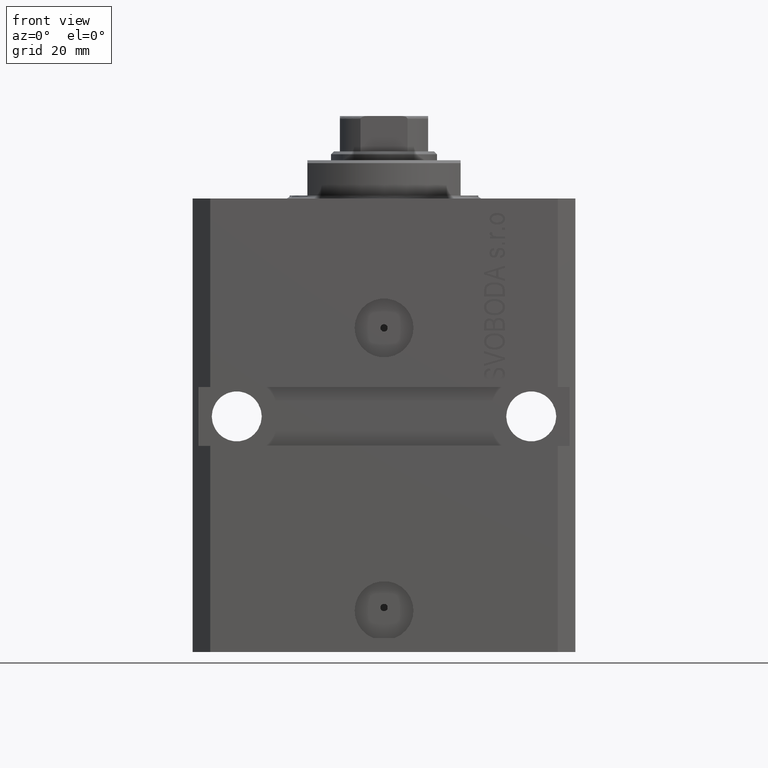
[diagram: clean part render]
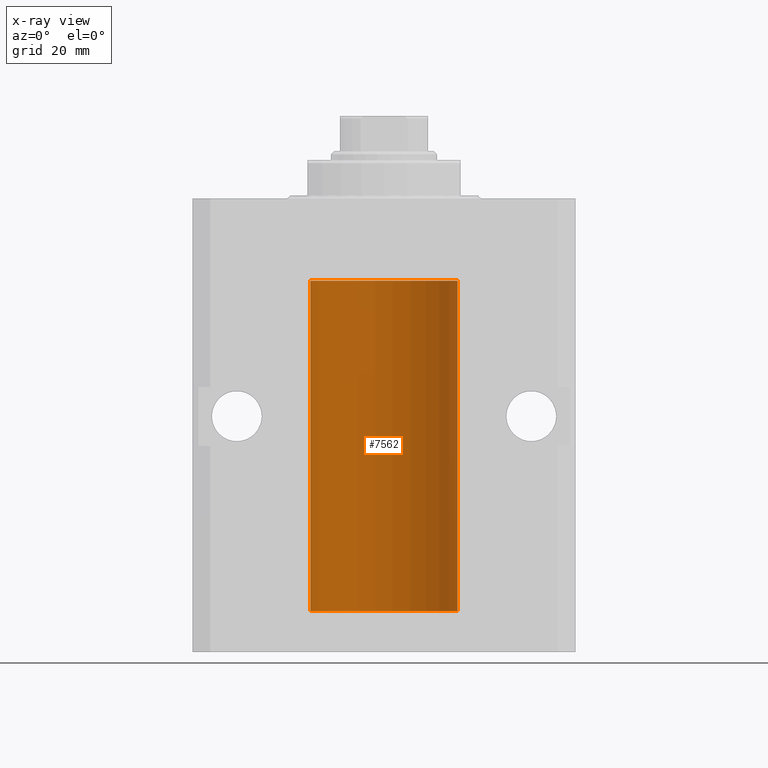
[diagram: x-ray — body ghosted, one internal face saturated and labeled with its STEP entity id]
A machine part, front view, then the same camera in x-ray: the body is ghosted and one INTERNAL B-rep face — a face not visible from any outside direction — is saturated and labeled: STEP entity #7562.
In plain terms, the highlighted cylindrical surface (partial cylindrical patch) has radius 12.5 mm, axis along (0, 0, 1).
Its self-contained STEP definition (entity closure, byte-faithful):
#129 = EDGE_CURVE ( 'NONE', #7291, #30047, #8101, .T. ) ;
#393 = VERTEX_POINT ( 'NONE', #12333 ) ;
#578 = ORIENTED_EDGE ( 'NONE', *, *, #26243, .F. ) ;
#1809 = CARTESIAN_POINT ( 'NONE',  ( -12.50000000000000000, 1.530808498934191521E-15, -13.99999999999999822 ) ) ;
#3258 = CARTESIAN_POINT ( 'NONE',  ( -12.50000000000000000, 1.530808498934191521E-15, -70.09999999999999432 ) ) ;
#3411 = VERTEX_POINT ( 'NONE', #17858 ) ;
#4256 = ORIENTED_EDGE ( 'NONE', *, *, #9325, .T. ) ;
#4533 = CARTESIAN_POINT ( 'NONE',  ( -12.49631005746706514, 0.3253680783018499389, -65.55856740465391397 ) ) ;
#4573 = CARTESIAN_POINT ( 'NONE',  ( -12.50000000000017941, 3.883381774819353300E-13, -65.62500000000359535 ) ) ;
#5159 = CARTESIAN_POINT ( 'NONE',  ( -12.49625855304193678, 0.3150454781038042329, -21.45402800297484802 ) ) ;
#5969 = EDGE_CURVE ( 'NONE', #14838, #3411, #12307, .T. ) ;
#6950 = CARTESIAN_POINT ( 'NONE',  ( -12.50000000000000000, -1.053276923642966949E-14, -64.37500000000000000 ) ) ;
#7036 = CARTESIAN_POINT ( 'NONE',  ( 12.50000000000000000, 0.000000000000000000, -13.99999999999999822 ) ) ;
#7291 = VERTEX_POINT ( 'NONE', #29620 ) ;
#7562 = ADVANCED_FACE ( 'NONE', ( #9477 ), #21796, .F. ) ;
#7652 = CARTESIAN_POINT ( 'NONE',  ( -12.48520330846398174, 0.6088355886774118320, -65.16325431852561678 ) ) ;
#8101 = LINE ( 'NONE', #30287, #44692 ) ;
#8275 = CARTESIAN_POINT ( 'NONE',  ( -12.49631005746706336, 0.3253680783018528255, -22.55856740465392463 ) ) ;
#8571 = B_SPLINE_CURVE_WITH_KNOTS ( 'NONE', 3,
 ( #15430, #19955, #29992, #5159, #19717, #45449, #44523, #34263, #16143, #34498, #26392, #8275, #23520, #19250 ),
 .UNSPECIFIED., .F., .F.,
 ( 4, 2, 2, 2, 2, 2, 4 ),
 ( 2.030551168097110502E-20, 0.0002442924852390969078, 0.0004885849704781938157, 0.0009771699409563880650, 0.001221462426195485135, 0.001465754911434582423, 0.001954339881912776130 ),
 .UNSPECIFIED. ) ;
#8720 = DIRECTION ( 'NONE',  ( -0.000000000000000000, -0.000000000000000000, 1.000000000000000000 ) ) ;
#8921 = DIRECTION ( 'NONE',  ( 1.000000000000000000, 0.000000000000000000, 0.000000000000000000 ) ) ;
#9325 = EDGE_CURVE ( 'NONE', #26870, #3411, #8571, .T. ) ;
#9477 = FACE_OUTER_BOUND ( 'NONE', #38616, .T. ) ;
#9533 = CARTESIAN_POINT ( 'NONE',  ( -12.50000000000000000, -1.053276923642966949E-14, -64.37500000000000000 ) ) ;
#10759 = CARTESIAN_POINT ( 'NONE',  ( -12.48436813453758809, 0.6249418250771181516, -64.83668996798922990 ) ) ;
#10841 = VERTEX_POINT ( 'NONE', #4573 ) ;
#11349 = EDGE_CURVE ( 'NONE', #7291, #393, #45066, .T. ) ;
#11832 = CIRCLE ( 'NONE', #38457, 12.50000000000000000 ) ;
#12307 = LINE ( 'NONE', #27080, #22040 ) ;
#12333 = CARTESIAN_POINT ( 'NONE',  ( -12.50000000000000000, 1.530808498934191521E-15, -70.09999999999999432 ) ) ;
#12406 = CARTESIAN_POINT ( 'NONE',  ( -12.49011732893843885, 0.5003763274120245352, -65.38348111289289477 ) ) ;
#14163 = DIRECTION ( 'NONE',  ( -0.000000000000000000, -0.000000000000000000, 1.000000000000000000 ) ) ;
#14838 = VERTEX_POINT ( 'NONE', #9533 ) ;
#15430 = CARTESIAN_POINT ( 'NONE',  ( -12.50000000000000000, -2.089494013101375120E-17, -21.37499999999999645 ) ) ;
#15598 = LINE ( 'NONE', #33253, #24385 ) ;
#16143 = CARTESIAN_POINT ( 'NONE',  ( -12.48520330846397819, 0.6088355886774127201, -22.16325431852561323 ) ) ;
#17819 = DIRECTION ( 'NONE',  ( 0.000000000000000000, 0.000000000000000000, 1.000000000000000000 ) ) ;
#17858 = CARTESIAN_POINT ( 'NONE',  ( -12.50000000000017941, 3.883381646606358354E-13, -22.62500000000358824 ) ) ;
#18719 = CARTESIAN_POINT ( 'NONE',  ( 0.000000000000000000, 0.000000000000000000, -70.09999999999999432 ) ) ;
#18960 = DIRECTION ( 'NONE',  ( 0.000000000000000000, 0.000000000000000000, 1.000000000000000000 ) ) ;
#19095 = CARTESIAN_POINT ( 'NONE',  ( -12.50000000000017941, 3.883381774819353300E-13, -65.62500000000359535 ) ) ;
#19250 = CARTESIAN_POINT ( 'NONE',  ( -12.50000000000017941, 3.883381646606358354E-13, -22.62500000000358824 ) ) ;
#19717 = CARTESIAN_POINT ( 'NONE',  ( -12.49422197749724006, 0.3843754434364375916, -21.50047099568095277 ) ) ;
#19955 = CARTESIAN_POINT ( 'NONE',  ( -12.50000000000000000, 0.08260426088729219685, -21.37500000000000000 ) ) ;
#20443 = CARTESIAN_POINT ( 'NONE',  ( 0.000000000000000000, 0.000000000000000000, -70.09999999999999432 ) ) ;
#21497 = CARTESIAN_POINT ( 'NONE',  ( -12.48810268015257741, 0.5573155909661293705, -64.67347410093867666 ) ) ;
#21796 = CYLINDRICAL_SURFACE ( 'NONE', #22904, 12.50000000000000000 ) ;
#22040 = VECTOR ( 'NONE', #8720, 1000.000000000000000 ) ;
#22904 = AXIS2_PLACEMENT_3D ( 'NONE', #20443, #14163, #46836 ) ;
#23257 = B_SPLINE_CURVE_WITH_KNOTS ( 'NONE', 3,
 ( #6950, #40318, #43424, #43897, #25767, #21497, #10759, #25305, #7652, #39853, #12406, #4533, #26477, #19095 ),
 .UNSPECIFIED., .F., .F.,
 ( 4, 2, 2, 2, 2, 2, 4 ),
 ( 3.492495172846855184E-18, 0.0002442924852390798859, 0.0004885849704781563023, 0.0009771699409563386254, 0.001221462426195450658, 0.001465754911434562473, 0.001954339881912786538 ),
 .UNSPECIFIED. ) ;
#23520 = CARTESIAN_POINT ( 'NONE',  ( -12.49999999999999289, 0.1631761135151241215, -22.62499999999984013 ) ) ;
#24112 = ORIENTED_EDGE ( 'NONE', *, *, #11349, .F. ) ;
#24385 = VECTOR ( 'NONE', #44457, 1000.000000000000000 ) ;
#25208 = DIRECTION ( 'NONE',  ( 1.000000000000000000, 0.000000000000000000, 0.000000000000000000 ) ) ;
#25305 = CARTESIAN_POINT ( 'NONE',  ( -12.48436376893640265, 0.6250290278979918623, -65.08132082824472775 ) ) ;
#25767 = CARTESIAN_POINT ( 'NONE',  ( -12.49422197749724361, 0.3843754434364307082, -64.50047099568097053 ) ) ;
#26243 = EDGE_CURVE ( 'NONE', #26870, #39003, #15598, .T. ) ;
#26392 = CARTESIAN_POINT ( 'NONE',  ( -12.49011732893843529, 0.5003763274120274218, -22.38348111289287701 ) ) ;
#26477 = CARTESIAN_POINT ( 'NONE',  ( -12.49999999999999822, 0.1631761135151225950, -65.62499999999985789 ) ) ;
#26870 = VERTEX_POINT ( 'NONE', #45356 ) ;
#27080 = CARTESIAN_POINT ( 'NONE',  ( -12.50000000000000000, 1.530808498934191521E-15, -70.09999999999999432 ) ) ;
#27753 = ORIENTED_EDGE ( 'NONE', *, *, #42266, .T. ) ;
#28612 = EDGE_CURVE ( 'NONE', #393, #10841, #36396, .T. ) ;
#29620 = CARTESIAN_POINT ( 'NONE',  ( 12.50000000000000000, 0.000000000000000000, -70.09999999999999432 ) ) ;
#29858 = AXIS2_PLACEMENT_3D ( 'NONE', #18719, #18960, #8921 ) ;
#29992 = CARTESIAN_POINT ( 'NONE',  ( -12.49915784441386890, 0.1636601911727947889, -21.39126818989430490 ) ) ;
#30047 = VERTEX_POINT ( 'NONE', #7036 ) ;
#30287 = CARTESIAN_POINT ( 'NONE',  ( 12.50000000000000000, 0.000000000000000000, -70.09999999999999432 ) ) ;
#31687 = ORIENTED_EDGE ( 'NONE', *, *, #5969, .F. ) ;
#33253 = CARTESIAN_POINT ( 'NONE',  ( -12.50000000000000000, 1.530808498934191521E-15, -70.09999999999999432 ) ) ;
#34263 = CARTESIAN_POINT ( 'NONE',  ( -12.48436376893640443, 0.6250290278979917513, -22.08132082824473486 ) ) ;
#34498 = CARTESIAN_POINT ( 'NONE',  ( -12.48809959379011403, 0.5462151254764975317, -22.31461370481611795 ) ) ;
#34669 = ORIENTED_EDGE ( 'NONE', *, *, #129, .T. ) ;
#35933 = ORIENTED_EDGE ( 'NONE', *, *, #36052, .T. ) ;
#36052 = EDGE_CURVE ( 'NONE', #14838, #10841, #23257, .T. ) ;
#36396 = LINE ( 'NONE', #3258, #44129 ) ;
#38457 = AXIS2_PLACEMENT_3D ( 'NONE', #47138, #17819, #25208 ) ;
#38616 = EDGE_LOOP ( 'NONE', ( #40900, #24112, #34669, #27753, #578, #4256, #31687, #35933 ) ) ;
#39003 = VERTEX_POINT ( 'NONE', #1809 ) ;
#39853 = CARTESIAN_POINT ( 'NONE',  ( -12.48809959379011580, 0.5462151254764966435, -65.31461370481613926 ) ) ;
#40203 = DIRECTION ( 'NONE',  ( -0.000000000000000000, -0.000000000000000000, 1.000000000000000000 ) ) ;
#40318 = CARTESIAN_POINT ( 'NONE',  ( -12.49999999999999645, 0.08260426088728485550, -64.37499999999998579 ) ) ;
#40900 = ORIENTED_EDGE ( 'NONE', *, *, #28612, .F. ) ;
#42266 = EDGE_CURVE ( 'NONE', #30047, #39003, #11832, .T. ) ;
#43424 = CARTESIAN_POINT ( 'NONE',  ( -12.49915784441386890, 0.1636601911727943726, -64.39126818989430490 ) ) ;
#43897 = CARTESIAN_POINT ( 'NONE',  ( -12.49625855304193500, 0.3150454781038046770, -64.45402800297485157 ) ) ;
#44129 = VECTOR ( 'NONE', #40203, 1000.000000000000000 ) ;
#44457 = DIRECTION ( 'NONE',  ( -0.000000000000000000, -0.000000000000000000, 1.000000000000000000 ) ) ;
#44523 = CARTESIAN_POINT ( 'NONE',  ( -12.48436813453758454, 0.6249418250771192618, -21.83668996798922635 ) ) ;
#44692 = VECTOR ( 'NONE', #44817, 1000.000000000000000 ) ;
#44817 = DIRECTION ( 'NONE',  ( -0.000000000000000000, -0.000000000000000000, 1.000000000000000000 ) ) ;
#45066 = CIRCLE ( 'NONE', #29858, 12.50000000000000000 ) ;
#45356 = CARTESIAN_POINT ( 'NONE',  ( -12.50000000000000000, -2.089494013101375120E-17, -21.37499999999999645 ) ) ;
#45449 = CARTESIAN_POINT ( 'NONE',  ( -12.48810268015257563, 0.5573155909661349217, -21.67347410093867666 ) ) ;
#46836 = DIRECTION ( 'NONE',  ( 1.000000000000000000, 0.000000000000000000, 0.000000000000000000 ) ) ;
#47138 = CARTESIAN_POINT ( 'NONE',  ( 0.000000000000000000, 0.000000000000000000, -13.99999999999999822 ) ) ;